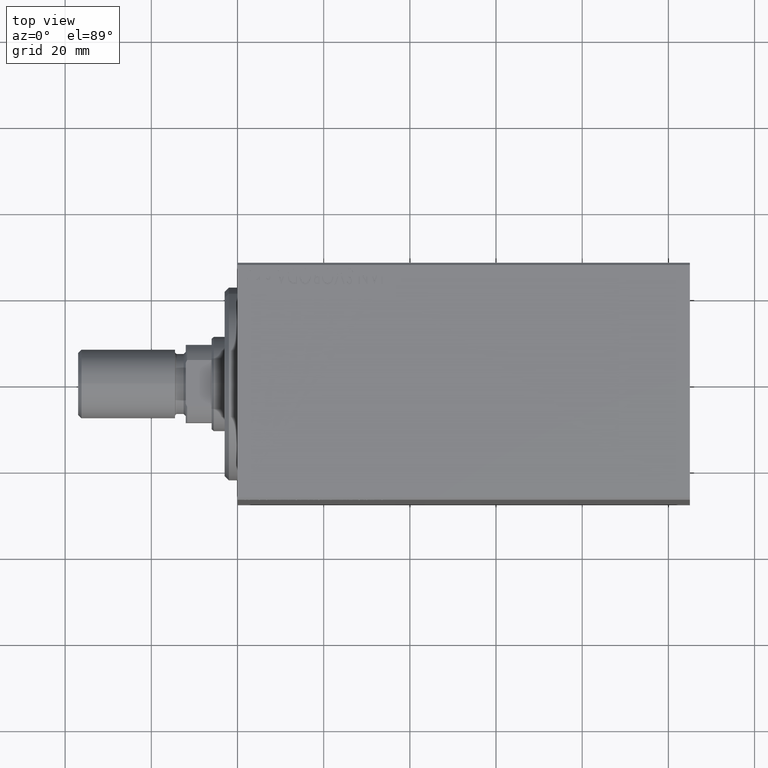
[diagram: clean part render]
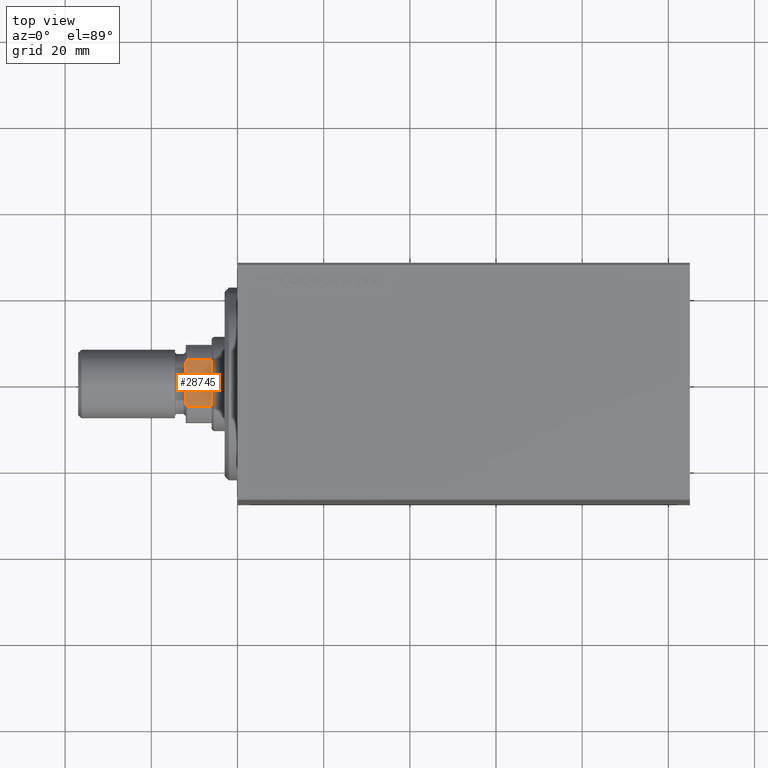
[diagram: same view with one face highlighted and labeled with its STEP entity id]
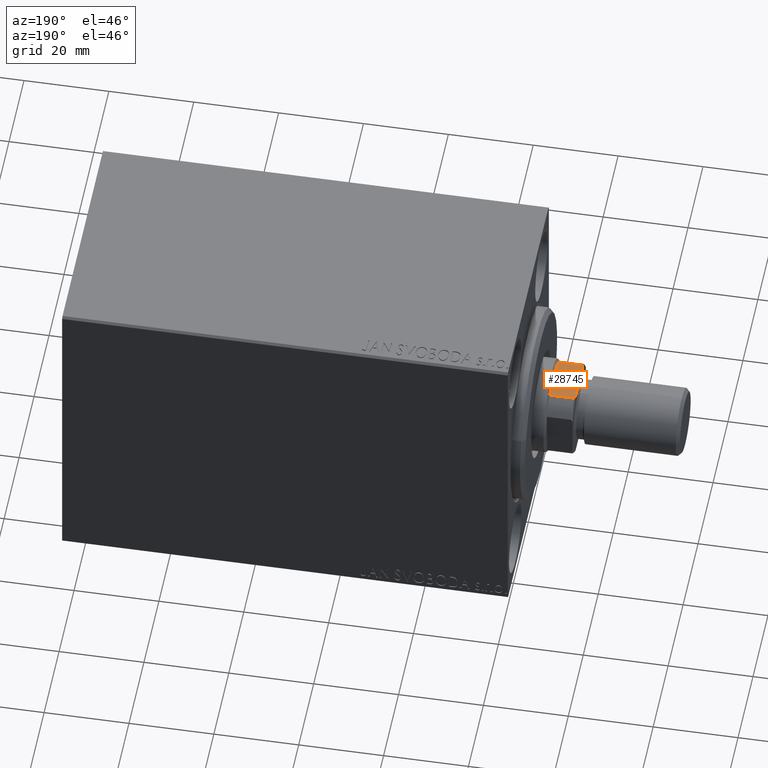
[diagram: same view with one face highlighted and labeled with its STEP entity id]
A machine part, top view. The second image highlights one B-rep face of the part: STEP entity #28745.
A second angle (auxiliary view) of the same face is appended — the face is thin or edge-on in the first view.
In plain terms, the highlighted planar face has unit normal (-0, -0, -1).
Its self-contained STEP definition (entity closure, byte-faithful):
#269 = VECTOR ( 'NONE', #39791, 1000.000000000000000 ) ;
#519 = CARTESIAN_POINT ( 'NONE',  ( 8.999999999999996447, -5.408326913195990571, 106.6999999999999886 ) ) ;
#1392 = CARTESIAN_POINT ( 'NONE',  ( 8.999999999999998224, 5.408326913195988794, 106.6999999999999886 ) ) ;
#2201 = EDGE_CURVE ( 'NONE', #20629, #23151, #34499, .T. ) ;
#2294 = B_SPLINE_CURVE_WITH_KNOTS ( 'NONE', 3,
 ( #13865, #6448, #13418, #10041 ),
 .UNSPECIFIED., .F., .F.,
 ( 4, 4 ),
 ( 8.673617379884035472E-19, 0.0006782784334759891934 ),
 .UNSPECIFIED. ) ;
#3242 = ORIENTED_EDGE ( 'NONE', *, *, #22373, .T. ) ;
#6241 = ORIENTED_EDGE ( 'NONE', *, *, #2201, .F. ) ;
#6448 = CARTESIAN_POINT ( 'NONE',  ( 9.000000000000001776, -5.004607318780265324, 106.9037142029269205 ) ) ;
#7309 = CARTESIAN_POINT ( 'NONE',  ( 8.999999999999998224, 8.999999999999998224, 107.0000000000000142 ) ) ;
#8241 = EDGE_CURVE ( 'NONE', #13855, #43331, #29833, .T. ) ;
#9726 = VECTOR ( 'NONE', #30680, 1000.000000000000000 ) ;
#9813 = VERTEX_POINT ( 'NONE', #519 ) ;
#10041 = CARTESIAN_POINT ( 'NONE',  ( 8.999999999999996447, -5.408326913195990571, 106.6999999999999886 ) ) ;
#11148 = CARTESIAN_POINT ( 'NONE',  ( 8.999999999999998224, 5.408326913195988794, 101.0000000000000284 ) ) ;
#11243 = CARTESIAN_POINT ( 'NONE',  ( 8.999999999999998224, 5.408326913195988794, 106.6999999999999886 ) ) ;
#11341 = EDGE_CURVE ( 'NONE', #34871, #9813, #26256, .T. ) ;
#12748 = ORIENTED_EDGE ( 'NONE', *, *, #8241, .T. ) ;
#12775 = CARTESIAN_POINT ( 'NONE',  ( 8.999999999999998224, 5.408326913195988794, -0.001000000000001000089 ) ) ;
#13418 = CARTESIAN_POINT ( 'NONE',  ( 9.000000000000001776, -5.207299490555455712, 106.8035449543006763 ) ) ;
#13725 = EDGE_CURVE ( 'NONE', #20629, #9813, #2294, .T. ) ;
#13855 = VERTEX_POINT ( 'NONE', #11148 ) ;
#13865 = CARTESIAN_POINT ( 'NONE',  ( 9.000000000000001776, -4.799999999999946532, 107.0000000000000142 ) ) ;
#16169 = DIRECTION ( 'NONE',  ( -0.000000000000000000, -0.000000000000000000, 1.000000000000000000 ) ) ;
#18085 = VECTOR ( 'NONE', #16169, 1000.000000000000000 ) ;
#18511 = B_SPLINE_CURVE_WITH_KNOTS ( 'NONE', 3,
 ( #11243, #28535, #24947, #27649 ),
 .UNSPECIFIED., .F., .F.,
 ( 4, 4 ),
 ( 0.000000000000000000, 0.0006782784334759837724 ),
 .UNSPECIFIED. ) ;
#20629 = VERTEX_POINT ( 'NONE', #38560 ) ;
#21684 = EDGE_CURVE ( 'NONE', #43331, #23151, #18511, .T. ) ;
#22373 = EDGE_CURVE ( 'NONE', #34871, #13855, #36439, .T. ) ;
#22634 = CARTESIAN_POINT ( 'NONE',  ( 8.999999999999996447, -5.408326913195990571, 101.0000000000000284 ) ) ;
#22668 = DIRECTION ( 'NONE',  ( -0.000000000000000000, -0.000000000000000000, 1.000000000000000000 ) ) ;
#23151 = VERTEX_POINT ( 'NONE', #24077 ) ;
#24077 = CARTESIAN_POINT ( 'NONE',  ( 8.999999999999998224, 4.799999999999949196, 107.0000000000000142 ) ) ;
#24947 = CARTESIAN_POINT ( 'NONE',  ( 8.999999999999998224, 5.004607318780272429, 106.9037142029269205 ) ) ;
#25798 = EDGE_LOOP ( 'NONE', ( #12748, #32079, #6241, #38166, #27602, #3242 ) ) ;
#26256 = LINE ( 'NONE', #39955, #18085 ) ;
#26289 = AXIS2_PLACEMENT_3D ( 'NONE', #30484, #41261, #41038 ) ;
#26325 = CARTESIAN_POINT ( 'NONE',  ( 8.999999999999998224, 8.999999999999998224, 101.0000000000000000 ) ) ;
#27337 = FACE_OUTER_BOUND ( 'NONE', #25798, .T. ) ;
#27558 = PLANE ( 'NONE',  #26289 ) ;
#27602 = ORIENTED_EDGE ( 'NONE', *, *, #11341, .F. ) ;
#27649 = CARTESIAN_POINT ( 'NONE',  ( 8.999999999999998224, 4.799999999999949196, 107.0000000000000142 ) ) ;
#28535 = CARTESIAN_POINT ( 'NONE',  ( 8.999999999999998224, 5.207299490555457488, 106.8035449543006763 ) ) ;
#28745 = ADVANCED_FACE ( 'NONE', ( #27337 ), #27558, .F. ) ;
#29833 = LINE ( 'NONE', #12775, #42786 ) ;
#30484 = CARTESIAN_POINT ( 'NONE',  ( 8.999999999999998224, 8.999999999999998224, 107.0000000000000142 ) ) ;
#30680 = DIRECTION ( 'NONE',  ( -1.927470528863119049E-16, 1.000000000000000000, -0.000000000000000000 ) ) ;
#32079 = ORIENTED_EDGE ( 'NONE', *, *, #21684, .T. ) ;
#34499 = LINE ( 'NONE', #7309, #9726 ) ;
#34871 = VERTEX_POINT ( 'NONE', #22634 ) ;
#36439 = LINE ( 'NONE', #26325, #269 ) ;
#38166 = ORIENTED_EDGE ( 'NONE', *, *, #13725, .T. ) ;
#38560 = CARTESIAN_POINT ( 'NONE',  ( 9.000000000000001776, -4.799999999999946532, 107.0000000000000142 ) ) ;
#39791 = DIRECTION ( 'NONE',  ( -1.927470528863119049E-16, 1.000000000000000000, -0.000000000000000000 ) ) ;
#39955 = CARTESIAN_POINT ( 'NONE',  ( 8.999999999999996447, -5.408326913195990571, -0.001000000000001000089 ) ) ;
#41038 = DIRECTION ( 'NONE',  ( 1.927470528863119049E-16, -1.000000000000000000, 0.000000000000000000 ) ) ;
#41261 = DIRECTION ( 'NONE',  ( -1.000000000000000000, -1.927470528863119049E-16, 0.000000000000000000 ) ) ;
#42786 = VECTOR ( 'NONE', #22668, 1000.000000000000000 ) ;
#43331 = VERTEX_POINT ( 'NONE', #1392 ) ;